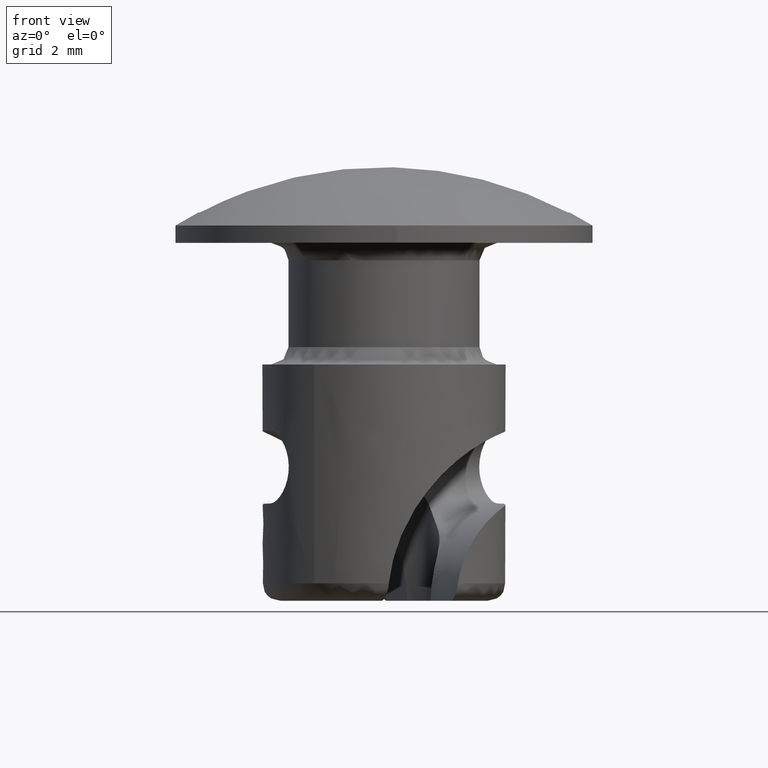
[diagram: clean part render]
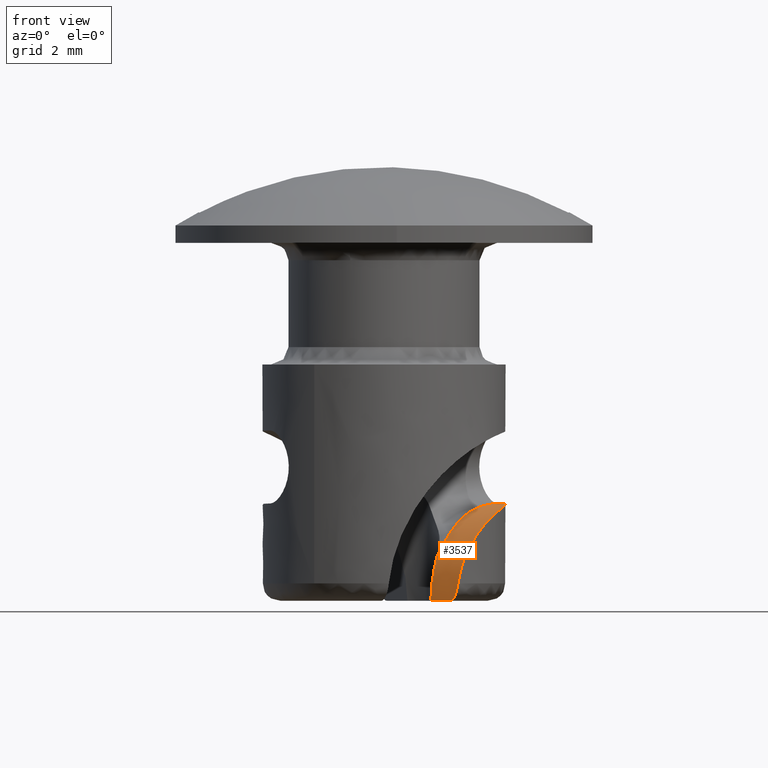
[diagram: same view with one face highlighted and labeled with its STEP entity id]
A machine part, front view. The second image highlights one B-rep face of the part: STEP entity #3537.
In plain terms, the highlighted face is a freeform B-spline surface patch.
Its self-contained STEP definition (entity closure, byte-faithful):
#158=CARTESIAN_POINT('',(3.267531389806065,1.254288091569578,-7.500000000000000));
#159=VERTEX_POINT('',#158);
#179=CARTESIAN_POINT('',(2.130075441178695,-2.777188977165110,-9.799999999999999));
#180=VERTEX_POINT('',#179);
#181=CARTESIAN_POINT('',(3.267531389806065,1.254288091569578,-7.500000000000000));
#182=CARTESIAN_POINT('',(3.351236201231299,1.036229656143436,-7.500000000000044));
#183=CARTESIAN_POINT('',(3.411928696002229,0.813524103630146,-7.501800996670410));
#184=CARTESIAN_POINT('',(3.469827848615740,0.472825998035585,-7.509600199138060));
#185=CARTESIAN_POINT('',(3.483562531513644,0.358145937308108,-7.513102425939852));
#186=CARTESIAN_POINT('',(3.495619258811995,0.184431839080708,-7.520534950377434));
#187=CARTESIAN_POINT('',(3.498212180357703,0.126067960738633,-7.523390375839235));
#188=CARTESIAN_POINT('',(3.500469369138221,0.009786994067344,-7.529966316466439));
#189=CARTESIAN_POINT('',(3.500144511385645,-0.048109455840942,-7.533682853950110));
#190=CARTESIAN_POINT('',(3.491431374993662,-0.336340421150417,-7.554835481180631));
#191=CARTESIAN_POINT('',(3.461918738339056,-0.562977309875933,-7.579685337474297));
#192=CARTESIAN_POINT('',(3.398109027051475,-0.840294049969957,-7.630150688370773));
#193=CARTESIAN_POINT('',(3.383992784310701,-0.895454771716498,-7.641234085952900));
#194=CARTESIAN_POINT('',(3.353052753250729,-1.005128671551286,-7.665714803996297));
#195=CARTESIAN_POINT('',(3.336194478454455,-1.059709490379539,-7.679141610569226));
#196=CARTESIAN_POINT('',(3.282408131559164,-1.220044288604357,-7.722764943899255));
#197=CARTESIAN_POINT('',(3.242068892079098,-1.323176334171434,-7.756451718762180));
#198=CARTESIAN_POINT('',(3.153749195252483,-1.521733329378920,-7.834986374075235));
#199=CARTESIAN_POINT('',(3.105763618038666,-1.617158614404564,-7.879827729397090));
#200=CARTESIAN_POINT('',(3.029071382458803,-1.754271634835380,-7.957209940913512));
#201=CARTESIAN_POINT('',(3.002696795596453,-1.798990073473793,-7.984733671681084));
#202=CARTESIAN_POINT('',(2.949511085799129,-1.884923787714104,-8.042440264602139));
#203=CARTESIAN_POINT('',(2.922593267598990,-1.926337623400674,-8.072727371432229));
#204=CARTESIAN_POINT('',(2.841274894414501,-2.046086303884922,-8.168031174000660));
#205=CARTESIAN_POINT('',(2.786308989744113,-2.119934950668822,-8.237482804827646));
#206=CARTESIAN_POINT('',(2.704329386886667,-2.222276549525328,-8.351197747841971));
#207=CARTESIAN_POINT('',(2.677080857038320,-2.254983552241504,-8.390693929119360));
#208=CARTESIAN_POINT('',(2.623012407187708,-2.317653694523857,-8.473006711592110));
#209=CARTESIAN_POINT('',(2.596184807477795,-2.347614942412542,-8.515860002349939));
#210=CARTESIAN_POINT('',(2.518069499382953,-2.432120861706074,-8.647317138427413));
#211=CARTESIAN_POINT('',(2.468685109934227,-2.481862689659987,-8.739491498513999));
#212=CARTESIAN_POINT('',(2.376845319873072,-2.569952316237547,-8.932795620225662));
#213=CARTESIAN_POINT('',(2.334357523734910,-2.608320339728411,-9.033992450119744));
#214=CARTESIAN_POINT('',(2.257984747262039,-2.674708381186761,-9.245278260521744));
#215=CARTESIAN_POINT('',(2.224880716377851,-2.702069470426255,-9.353192757073963));
#216=CARTESIAN_POINT('',(2.169320343134329,-2.746875110736415,-9.573347943216529));
#217=CARTESIAN_POINT('',(2.146860492499996,-2.764315015078841,-9.685588694464434));
#218=CARTESIAN_POINT('',(2.130075441178695,-2.777188977165110,-9.799999999999999));
#219=B_SPLINE_CURVE_WITH_KNOTS('',3,(#181,#182,#183,#184,#185,#186,#187,#188,#189,#190,#191,#192,#193,#194,#195,#196,#197,#198,#199,#200,#201,#202,#203,#204,#205,#206,#207,#208,#209,#210,#211,#212,#213,#214,#215,#216,#217,#218),.UNSPECIFIED.,.F.,.U.,(4,2,2,2,2,2,2,2,2,2,2,2,2,2,2,2,2,2,4),(0.0,0.124999999999999,0.187499999999999,0.218749999999999,0.249999999999999,0.374999999999999,0.406249999999998,0.437499999999998,0.499999999999999,0.562499999999999,0.593749999999999,0.624999999999998,0.687499999999998,0.718749999999998,0.749999999999998,0.812499999999998,0.874999999999999,0.937499999999999,1.0),.UNSPECIFIED.);
#220=EDGE_CURVE('',#159,#180,#219,.T.);
#1279=CARTESIAN_POINT('',(1.348526415986928,-0.861090300366407,-10.300006999999800));
#1280=VERTEX_POINT('',#1279);
#1296=CARTESIAN_POINT('',(1.526739714262575,-0.478608237385681,-9.020980805307589));
#1297=VERTEX_POINT('',#1296);
#1298=CARTESIAN_POINT('',(1.348526415986928,-0.861090300366407,-10.300006999999800));
#1299=CARTESIAN_POINT('',(1.348216878263475,-0.861575057628850,-10.184480202719360));
#1300=CARTESIAN_POINT('',(1.352707110030774,-0.854672807549093,-10.070560551882989));
#1301=CARTESIAN_POINT('',(1.370351731888042,-0.826086112874334,-9.845851547787550));
#1302=CARTESIAN_POINT('',(1.383519998961991,-0.804411827625891,-9.735061851465112));
#1303=CARTESIAN_POINT('',(1.408719474774441,-0.758822073012823,-9.571444511098271));
#1304=CARTESIAN_POINT('',(1.418069932805432,-0.741329285476153,-9.517089868608608));
#1305=CARTESIAN_POINT('',(1.438064287306667,-0.701756759566078,-9.410550163466361));
#1306=CARTESIAN_POINT('',(1.448657629700479,-0.679781926301326,-9.358581550459560));
#1307=CARTESIAN_POINT('',(1.481458788396996,-0.606736702840809,-9.206707380556875));
#1308=CARTESIAN_POINT('',(1.504778748276006,-0.548662777793609,-9.110790856729157));
#1309=CARTESIAN_POINT('',(1.526739714262575,-0.478608237385681,-9.020980805307589));
#1310=B_SPLINE_CURVE_WITH_KNOTS('',3,(#1298,#1299,#1300,#1301,#1302,#1303,#1304,#1305,#1306,#1307,#1308,#1309),.UNSPECIFIED.,.F.,.U.,(4,2,2,2,2,4),(0.0,0.249999999999998,0.499999999999997,0.624999999999997,0.749999999999998,1.0),.UNSPECIFIED.);
#1311=EDGE_CURVE('',#1280,#1297,#1310,.T.);
#3110=CARTESIAN_POINT('',(3.267531389806065,1.254288091569578,-7.500000000000000));
#3111=CARTESIAN_POINT('',(3.201771294322082,1.276882587184494,-7.503448578172610));
#3112=CARTESIAN_POINT('',(3.129650457105615,1.275184102826662,-7.512696691126300));
#3113=CARTESIAN_POINT('',(3.062563535661830,1.260477448748721,-7.523491414858323));
#3114=CARTESIAN_POINT('',(2.966069229376713,1.239324169503149,-7.539017978838961));
#3115=CARTESIAN_POINT('',(2.878012975218879,1.193358656073557,-7.560185379773643));
#3116=CARTESIAN_POINT('',(2.800607218659148,1.135917343203629,-7.585246724779434));
#3117=CARTESIAN_POINT('',(2.764895348407133,1.109416255900988,-7.596809010854337));
#3118=CARTESIAN_POINT('',(2.730788548556593,1.081499888063383,-7.609256648213632));
#3119=CARTESIAN_POINT('',(2.696905374268559,1.053299988471535,-7.622565297550071));
#3120=CARTESIAN_POINT('',(2.662508300389542,1.024672386423511,-7.636075796612643));
#3121=CARTESIAN_POINT('',(2.635777496850125,0.987943768079089,-7.649368599288530));
#3122=CARTESIAN_POINT('',(2.604662910008253,0.956983164340200,-7.664294013960300));
#3123=CARTESIAN_POINT('',(2.581819072858037,0.934252379146814,-7.675252017159703));
#3124=CARTESIAN_POINT('',(2.562755605597786,0.907598950439164,-7.685945354634299));
#3125=CARTESIAN_POINT('',(2.541157332381721,0.884095007104228,-7.697651089953546));
#3126=CARTESIAN_POINT('',(2.528573993239359,0.870401408212888,-7.704470951706347));
#3127=CARTESIAN_POINT('',(2.517916322521525,0.854822778808730,-7.711004767977353));
#3128=CARTESIAN_POINT('',(2.505744100901492,0.840894090347695,-7.718064181724874));
#3129=CARTESIAN_POINT('',(2.497624525141708,0.831602849625650,-7.722773218951762));
#3130=CARTESIAN_POINT('',(2.490501230718182,0.821354826687884,-7.727306028463736));
#3131=CARTESIAN_POINT('',(2.482505880699659,0.812021272941657,-7.732132994732519));
#3132=CARTESIAN_POINT('',(2.455044892967233,0.779964064147639,-7.748711788804670));
#3133=CARTESIAN_POINT('',(2.431285140520759,0.744813531910748,-7.765178680066228));
#3134=CARTESIAN_POINT('',(2.405470173129508,0.712062193714762,-7.783025650480206));
#3135=CARTESIAN_POINT('',(2.386869029284194,0.688463002451924,-7.795885401912083));
#3136=CARTESIAN_POINT('',(2.375185093971638,0.660167189251467,-7.806815759472491));
#3137=CARTESIAN_POINT('',(2.360327870994913,0.635124087566427,-7.819017851943852));
#3138=CARTESIAN_POINT('',(2.311601889971857,0.552992339299920,-7.859036025402817));
#3139=CARTESIAN_POINT('',(2.261851759124754,0.473557801862076,-7.903511844887349));
#3140=CARTESIAN_POINT('',(2.214711540471860,0.394643429176713,-7.951185154280628));
#3141=CARTESIAN_POINT('',(2.102747373064406,0.207211501903382,-8.064415481723090));
#3142=CARTESIAN_POINT('',(1.992887735816376,0.030178271292622,-8.199990837306064));
#3143=CARTESIAN_POINT('',(1.885159438078568,-0.119353474793104,-8.363370980857152));
#3144=CARTESIAN_POINT('',(1.778991167935864,-0.266719832070724,-8.524385195141891));
#3145=CARTESIAN_POINT('',(1.669771850154461,-0.381383957046141,-8.714637206321113));
#3146=CARTESIAN_POINT('',(1.569896280351595,-0.449266418203776,-8.925549401956227));
#3147=CARTESIAN_POINT('',(1.554994725218628,-0.459394563049394,-8.957017755204928));
#3148=CARTESIAN_POINT('',(1.540690190302326,-0.469381559586090,-8.988823840668891));
#3149=CARTESIAN_POINT('',(1.526739714262575,-0.478608237385681,-9.020980805307589));
#3150=B_SPLINE_CURVE_WITH_KNOTS('',3,(#3110,#3111,#3112,#3113,#3114,#3115,#3116,#3117,#3118,#3119,#3120,#3121,#3122,#3123,#3124,#3125,#3126,#3127,#3128,#3129,#3130,#3131,#3132,#3133,#3134,#3135,#3136,#3137,#3138,#3139,#3140,#3141,#3142,#3143,#3144,#3145,#3146,#3147,#3148,#3149),.UNSPECIFIED.,.F.,.U.,(4,3,3,3,3,3,3,3,3,3,3,3,3,4),(0.0,0.208856761284159,0.509265363428153,0.647861683639522,0.788560067596841,0.891858594000354,0.952041201083718,0.992186480465624,1.130070253166908,1.229423308744290,1.555263144912203,2.329175252392035,3.091880237238295,3.205676738267616),.UNSPECIFIED.);
#3151=EDGE_CURVE('',#159,#1297,#3150,.T.);
#3490=CARTESIAN_POINT('',(0.828414376316804,0.502012523551204,-10.417250435243080));
#3491=CARTESIAN_POINT('',(2.124428236128043,-2.874218182166798,-10.417250435243080));
#3492=CARTESIAN_POINT('',(0.705628327478998,0.454879363836809,-7.553640134081149));
#3493=CARTESIAN_POINT('',(2.001642187290237,-2.921351341881192,-7.553640134081149));
#3494=CARTESIAN_POINT('',(3.381186725012387,1.481930258215842,-7.489486979845776));
#3495=CARTESIAN_POINT('',(4.677200584823628,-1.894300447502161,-7.489486979845776));
#3503=(BOUNDED_SURFACE()B_SPLINE_SURFACE(1,2,((#3490,#3492,#3494),(#3491,#3493,#3495)),.UNSPECIFIED.,.F.,.F.,.U.)B_SPLINE_SURFACE_WITH_KNOTS((2,2),(3,3),(0.0,3.616432731720018),(0.0,4.716512445631453),.UNSPECIFIED.)GEOMETRIC_REPRESENTATION_ITEM()RATIONAL_B_SPLINE_SURFACE(((1.0,0.697070244438356,0.995214354517523),(1.0,0.697070244438356,0.995214354517523)))REPRESENTATION_ITEM('')SURFACE());
#3504=ORIENTED_EDGE('',*,*,#220,.F.);
#3505=ORIENTED_EDGE('',*,*,#3151,.T.);
#3506=ORIENTED_EDGE('',*,*,#1311,.F.);
#3507=CARTESIAN_POINT('',(1.906978861115200,-2.315908379720530,-10.300000000000001));
#3508=VERTEX_POINT('',#3507);
#3509=CARTESIAN_POINT('',(1.348526415986928,-0.861090300366407,-10.300006999999800));
#3510=CARTESIAN_POINT('',(1.906978861115200,-2.315908379720530,-10.300000000000001));
#3511=QUASI_UNIFORM_CURVE('',1,(#3509,#3510),.UNSPECIFIED.,.F.,.U.);
#3512=EDGE_CURVE('',#1280,#3508,#3511,.T.);
#3513=ORIENTED_EDGE('',*,*,#3512,.T.);
#3514=CARTESIAN_POINT('',(2.130075441178703,-2.777188977165104,-9.800000000000004));
#3515=CARTESIAN_POINT('',(2.125207190414890,-2.780922875534555,-9.833183272121120));
#3516=CARTESIAN_POINT('',(2.119668458612030,-2.781029743049899,-9.866049092864868));
#3517=CARTESIAN_POINT('',(2.107187352705783,-2.774075521922641,-9.931139141467490));
#3518=CARTESIAN_POINT('',(2.100154557965393,-2.766843942316032,-9.963678030301724));
#3519=CARTESIAN_POINT('',(2.085091666893553,-2.745728706374119,-10.025114703559179));
#3520=CARTESIAN_POINT('',(2.077018872512547,-2.731884596106581,-10.054322145193780));
#3521=CARTESIAN_POINT('',(2.059506595577938,-2.697701537372387,-10.109672805767261));
#3522=CARTESIAN_POINT('',(2.050310647059682,-2.677834332726547,-10.135014324561450));
#3523=CARTESIAN_POINT('',(2.030972175045378,-2.633439045435502,-10.180843940488909));
#3524=CARTESIAN_POINT('',(2.020691198678084,-2.608566691567899,-10.201570195246269));
#3525=CARTESIAN_POINT('',(1.999570599173189,-2.555998058538909,-10.236954771809600));
#3526=CARTESIAN_POINT('',(1.988690008278448,-2.528225781555036,-10.251784267086970));
#3527=CARTESIAN_POINT('',(1.966061360946407,-2.469875134090496,-10.275859528742849));
#3528=CARTESIAN_POINT('',(1.954408848319013,-2.439540972403140,-10.284939635178850));
#3529=CARTESIAN_POINT('',(1.930960765938615,-2.378430752100600,-10.296956075712499));
#3530=CARTESIAN_POINT('',(1.919038186803081,-2.347323989491629,-10.300000000000001));
#3531=CARTESIAN_POINT('',(1.906978861115180,-2.315908379720562,-10.300000000000001));
#3532=B_SPLINE_CURVE_WITH_KNOTS('',3,(#3514,#3515,#3516,#3517,#3518,#3519,#3520,#3521,#3522,#3523,#3524,#3525,#3526,#3527,#3528,#3529,#3530,#3531),.UNSPECIFIED.,.F.,.U.,(4,2,2,2,2,2,2,2,4),(0.0,0.125000000000000,0.250000000000000,0.375000000000000,0.500000000000000,0.625000000000000,0.750000000000000,0.875000000000000,1.0),.UNSPECIFIED.);
#3533=EDGE_CURVE('',#180,#3508,#3532,.T.);
#3534=ORIENTED_EDGE('',*,*,#3533,.F.);
#3535=EDGE_LOOP('',(#3504,#3505,#3506,#3513,#3534));
#3536=FACE_OUTER_BOUND('',#3535,.T.);
#3537=ADVANCED_FACE('',(#3536),#3503,.T.);